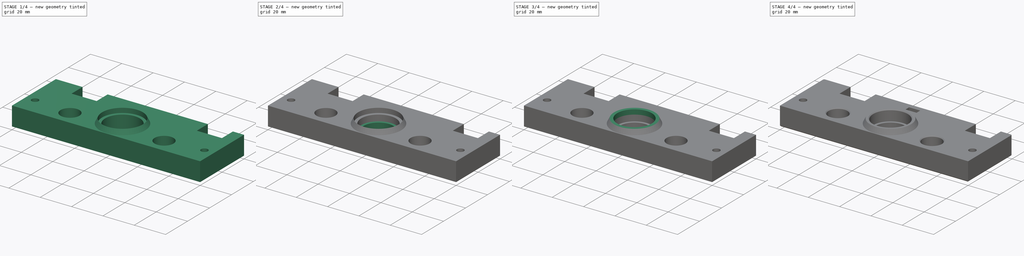
[diagram: build sequence overview — one tinted view per stage of 4, left to right]
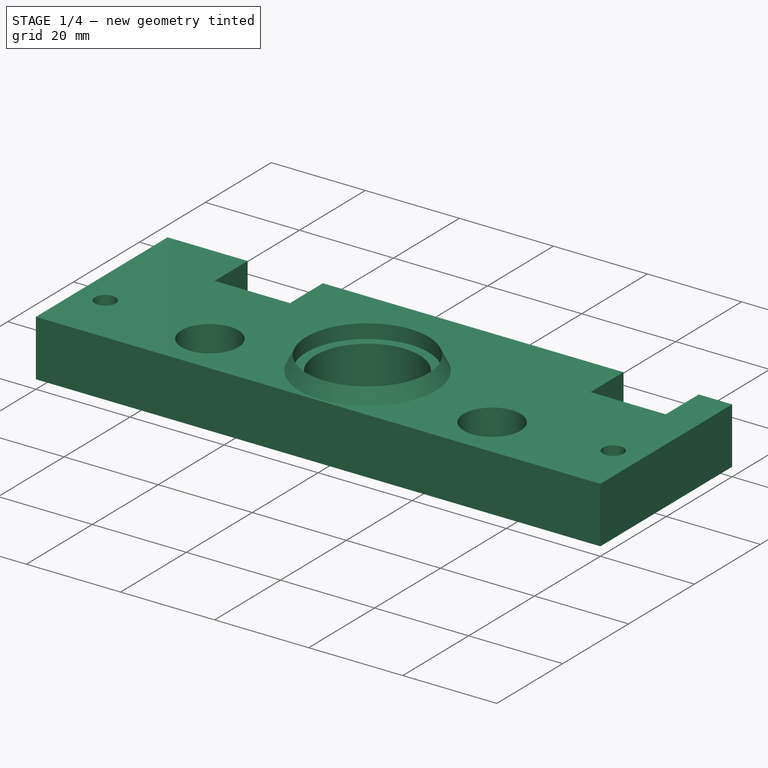
[diagram: stage 1 of 4 — iso view after this stage's code; geometry added in this stage tinted green]
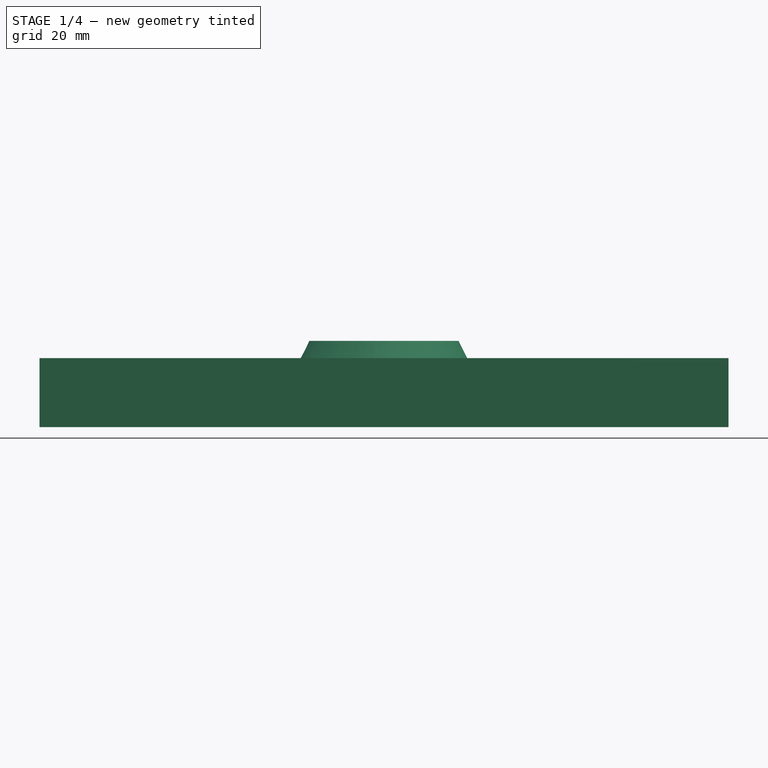
[diagram: stage 1 of 4 — front view after this stage's code; geometry added in this stage tinted green]
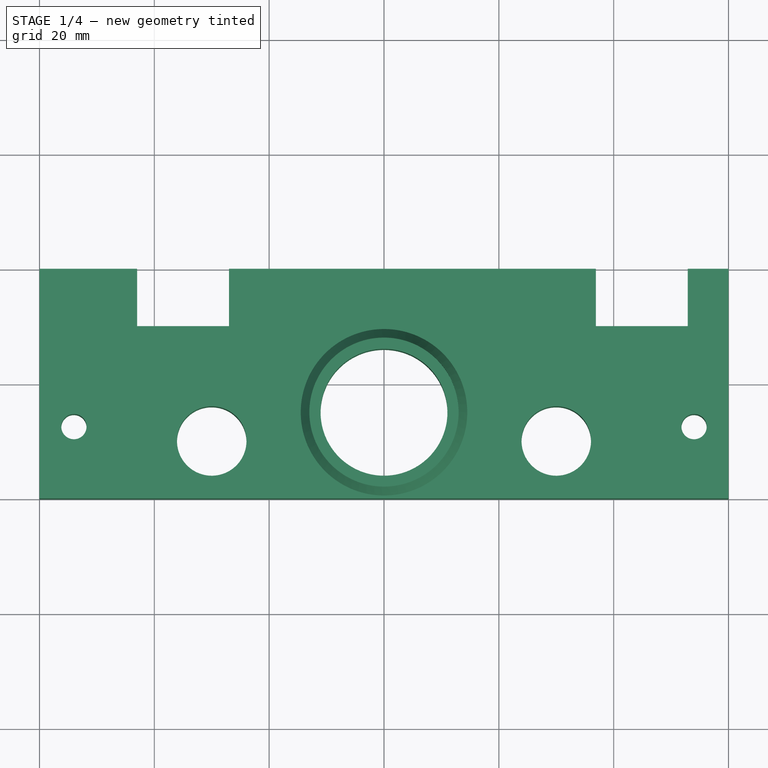
[diagram: stage 1 of 4 — top view after this stage's code; geometry added in this stage tinted green]
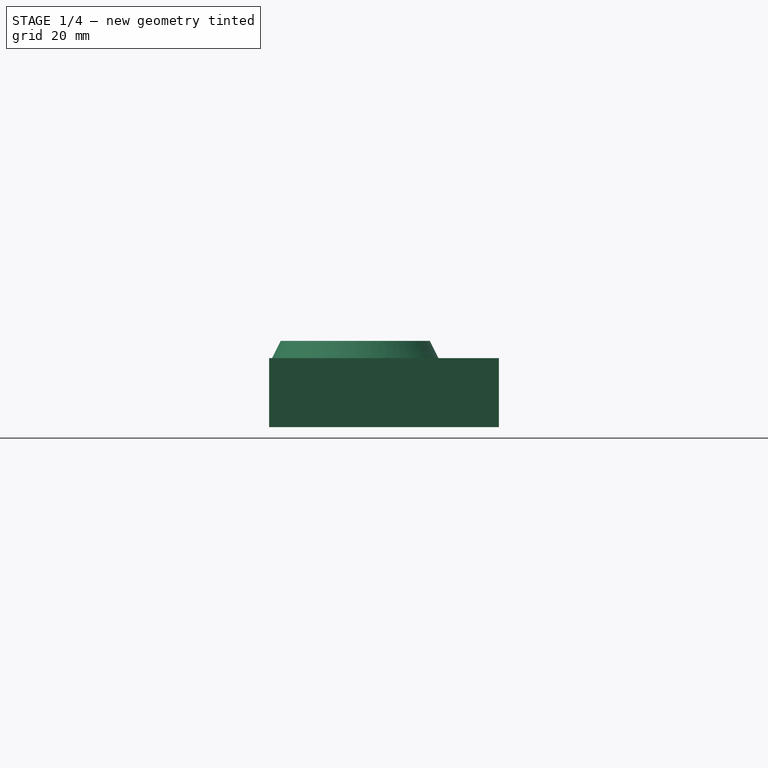
[diagram: stage 1 of 4 — right view after this stage's code; geometry added in this stage tinted green]
FCSTD DOCUMENT  (FreeCAD 0.16R6705 (Git))
Label: Tisch X-Achse - untere Wand
License: All rights reserved
LicenseURL: http://de.wikipedia.org/wiki/Alle_Rechte_vorbehalten
objects: Sketcher::SketchObject×10, PartDesign::Pad×6, PartDesign::Pocket×3, PartDesign::Chamfer×2, PartDesign::Revolution×1, Part::MultiFuse×1, Part::Cut×1
note: 34 computed .brp shape members not serialized (recipe doc carries the construction recipe); baked Part::Feature solids carry a one-line shape summary decoded from their .brp

FEATURE [Sketcher::SketchObject] Sketch
  sketch-geometry (10):
    g0: LineSegment StartX=-60 StartY=20 StartZ=0 EndX=60 EndY=20 EndZ=0
    g1: LineSegment StartX=60 StartY=20 StartZ=0 EndX=60 EndY=-20 EndZ=0
    g2: LineSegment StartX=60 StartY=-20 StartZ=0 EndX=-60 EndY=-20 EndZ=0
    g3: LineSegment StartX=-60 StartY=-20 StartZ=0 EndX=-60 EndY=20 EndZ=0
    g4: Circle CenterX=-30 CenterY=-10 CenterZ=0 NormalX=0 NormalY=0 NormalZ=1 Radius=6.05
    g5: Circle CenterX=30 CenterY=-10 CenterZ=0 NormalX=0 NormalY=0 NormalZ=1 Radius=6.05
    g6: Circle CenterX=-54 CenterY=-7.5 CenterZ=0 NormalX=0 NormalY=0 NormalZ=1 Radius=2.2
    g7: Circle CenterX=54 CenterY=-7.5 CenterZ=0 NormalX=0 NormalY=0 NormalZ=1 Radius=2.2
    g8: Circle CenterX=0 CenterY=-5 CenterZ=0 NormalX=0 NormalY=0 NormalZ=1 Radius=11.05
    g9: LineSegment [constr] StartX=-30 StartY=-16.05 StartZ=0 EndX=1.79691e-06 EndY=-16.05 EndZ=0
  constraints (28):
    c: Coincident(g0,g1)
    c: Coincident(g1,g2)
    c: Coincident(g2,g3)
    c: Coincident(g3,g0)
    c: Horizontal(g0)
    c: Horizontal(g2)
    c: Vertical(g1)
    c: Vertical(g3)
    c: Symmetric(g0,g1,g-1)
    c: DistanceY(g1,g1) = 40
    c: DistanceX(g2,g2) = 120
    c: Symmetric(g4,g5,g-2)
    c: Radius(g4) = 6.05
    c: Equal(g4,g5)
    c: Symmetric(g7,g6,g-2)
    c: Radius(g7) = 2.2
    c: Equal(g7,g6)
    c: DistanceX(g4,g-1) = 30
    c: DistanceY(g4,g0) = 30
    c: DistanceY(g6,g0) = 27.5
    c: DistanceX(g0,g6) = 6
    c: PointOnObject(g8,g-2)
    c: Radius(g8) = 11.05
    c: PointOnObject(g9,g4)
    c: PointOnObject(g9,g8)
    c: Horizontal(g9)
    c: Tangent(g9,g8)
    c: Tangent(g4,g9)
FEATURE [PartDesign::Pad] Pad  label="Grundkoerper"
  Length = 12
  Length2 = 100
  Sketch = -> Sketch
  Type = 0
FEATURE [Sketcher::SketchObject] Sketch001
  ExternalGeometry = -> [Pad]
  Placement = pos=(0,0,0) rot=(1,0,0;3.14159rad)
  Support = -> Pad [Face10]
  sketch-geometry (8):
    g0: LineSegment StartX=-43 StartY=-10 StartZ=0 EndX=-27 EndY=-10 EndZ=0
    g1: LineSegment StartX=-27 StartY=-10 StartZ=0 EndX=-27 EndY=-20 EndZ=0
    g2: LineSegment StartX=-27 StartY=-20 StartZ=0 EndX=-43 EndY=-20 EndZ=0
    g3: LineSegment StartX=-43 StartY=-20 StartZ=0 EndX=-43 EndY=-10 EndZ=0
    g4: LineSegment StartX=36.9 StartY=-10 StartZ=0 EndX=52.9 EndY=-10 EndZ=0
    g5: LineSegment StartX=52.9 StartY=-10 StartZ=0 EndX=52.9 EndY=-20 EndZ=0
    g6: LineSegment StartX=52.9 StartY=-20 StartZ=0 EndX=36.9 EndY=-20 EndZ=0
    g7: LineSegment StartX=36.9 StartY=-20 StartZ=0 EndX=36.9 EndY=-10 EndZ=0
  constraints (24):
    c: Coincident(g0,g1)
    c: Coincident(g1,g2)
    c: Coincident(g2,g3)
    c: Coincident(g3,g0)
    c: Horizontal(g0)
    c: Horizontal(g2)
    c: Vertical(g1)
    c: Vertical(g3)
    c: Coincident(g4,g5)
    c: Coincident(g5,g6)
    c: Coincident(g6,g7)
    c: Coincident(g7,g4)
    c: Horizontal(g4)
    c: Horizontal(g6)
    c: Vertical(g5)
    c: Vertical(g7)
    c: PointOnObject(g6,g-3)
    c: PointOnObject(g1,g-3)
    c: Equal(g0,g4)
    c: DistanceX(g1,g-1) = 27
    c: DistanceX(g2,g-1) = 43
    c: Equal(g3,g5)
    c: DistanceY(g5,g5) = 10
    c: DistanceX(g-1,g6) = 36.9
FEATURE [PartDesign::Pocket] Pocket  label="Aussparung Befestigungen"
  Length = 5
  Sketch = -> Sketch001
  Type = 1
FEATURE [Sketcher::SketchObject] Sketch007
  Placement = pos=(0,-5,0) rot=(-1,0,0;4.71239rad)
  sketch-geometry (3):
    g0: LineSegment StartX=13 StartY=15 StartZ=0 EndX=13 EndY=12 EndZ=0
    g1: LineSegment StartX=13 StartY=12 StartZ=0 EndX=14.5 EndY=12 EndZ=0
    g2: LineSegment StartX=14.5 StartY=12 StartZ=0 EndX=13 EndY=15 EndZ=0
  constraints (9):
    c: Vertical(g0)
    c: Coincident(g0,g1)
    c: Horizontal(g1)
    c: Coincident(g1,g2)
    c: Coincident(g2,g0)
    c: DistanceX(g1,g1) = 1.5
    c: DistanceX(g0) = 13
    c: DistanceY(g0) = 12
    c: DistanceY(g0,g0) = 3
FEATURE [PartDesign::Revolution] Revolution  label="Verstaerkung Halterung Lager"
  Angle = 360
  Axis = (0,0,1)
  Base = (0,-5,0)
  Placement = pos=(0,-5,0) rot=(-1,0,0;4.71239rad)
  ReferenceAxis = -> Sketch007 [V_Axis]
  Reversed = true
  Sketch = -> Sketch007
FEATURE [Sketcher::SketchObject] Sketch009
  Placement = pos=(0,17,0) rot=(-1,0,0;4.71239rad)
  sketch-geometry (10):
    g0: LineSegment StartX=3.525 StartY=3.96484 StartZ=0 EndX=3.525 EndY=8.03516 EndZ=0
    g1: LineSegment [constr] StartX=3.525 StartY=8.03516 StartZ=0 EndX=1e-12 EndY=10.0703 EndZ=0
    g2: LineSegment [constr] StartX=1e-12 StartY=10.0703 StartZ=0 EndX=-3.525 EndY=8.03516 EndZ=0
    g3: LineSegment StartX=-3.525 StartY=8.03516 StartZ=0 EndX=-3.525 EndY=3.96484 EndZ=0
    g4: LineSegment StartX=-3.525 StartY=3.96484 StartZ=0 EndX=-5e-12 EndY=1.92968 EndZ=0
    g5: LineSegment StartX=-5e-12 StartY=1.92968 StartZ=0 EndX=3.525 EndY=3.96484 EndZ=0
    g6: Circle [constr] CenterX=0 CenterY=6 CenterZ=0 NormalX=0 NormalY=0 NormalZ=1 Radius=4.07032
    g7: LineSegment StartX=-3.525 StartY=8.03516 StartZ=0 EndX=-3.525 EndY=12 EndZ=0
    g8: LineSegment StartX=-3.525 StartY=12 StartZ=0 EndX=3.525 EndY=12 EndZ=0
    g9: LineSegment StartX=3.525 StartY=12 StartZ=0 EndX=3.525 EndY=8.03516 EndZ=0
  constraints (25):
    c: Coincident(g0,g1)
    c: Coincident(g1,g2)
    c: Coincident(g2,g3)
    c: Coincident(g3,g4)
    c: Coincident(g4,g5)
    c: Coincident(g5,g0)
    c: Equal(g0, g1-g5) x5
    c: PointOnObject(g0,g6)
    c: PointOnObject(g1,g6)
    c: PointOnObject(g2,g6)
    c: PointOnObject(g3,g6)
    c: PointOnObject(g4,g6)
    c: PointOnObject(g5,g6)
    c: Vertical(g3)
    c: PointOnObject(g6,g-2)
    c: Distance(g3,g0) = 7.05
    c: DistanceY(g-1,g6) = 6
    c: Vertical(g7)
    c: Coincident(g7,g8)
    c: Horizontal(g8)
    c: Coincident(g8,g9)
    c: Vertical(g9)
    c: Coincident(g0,g9)
    c: Coincident(g7,g2)
    c: DistanceY(g-1,g8) = 12
FEATURE [PartDesign::Pad] Pad005  label="Fixierungsmutter"
  Length = 3.3
  Length2 = 100
  Placement = pos=(0,17,0) rot=(-1,0,0;4.71239rad)
  Sketch = -> Sketch009
  Type = 0
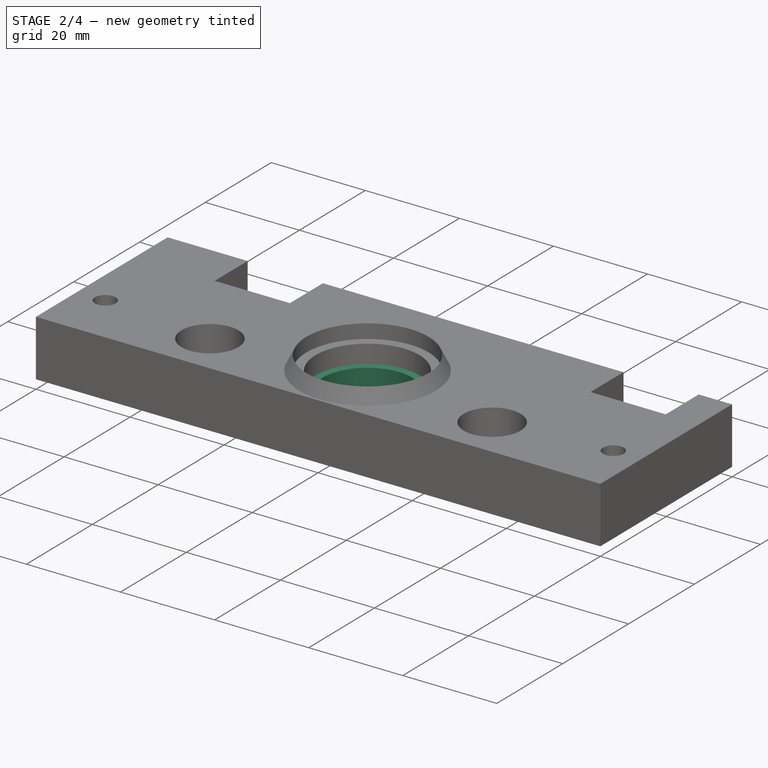
[diagram: stage 2 of 4 — iso view after this stage's code; geometry added in this stage tinted green]
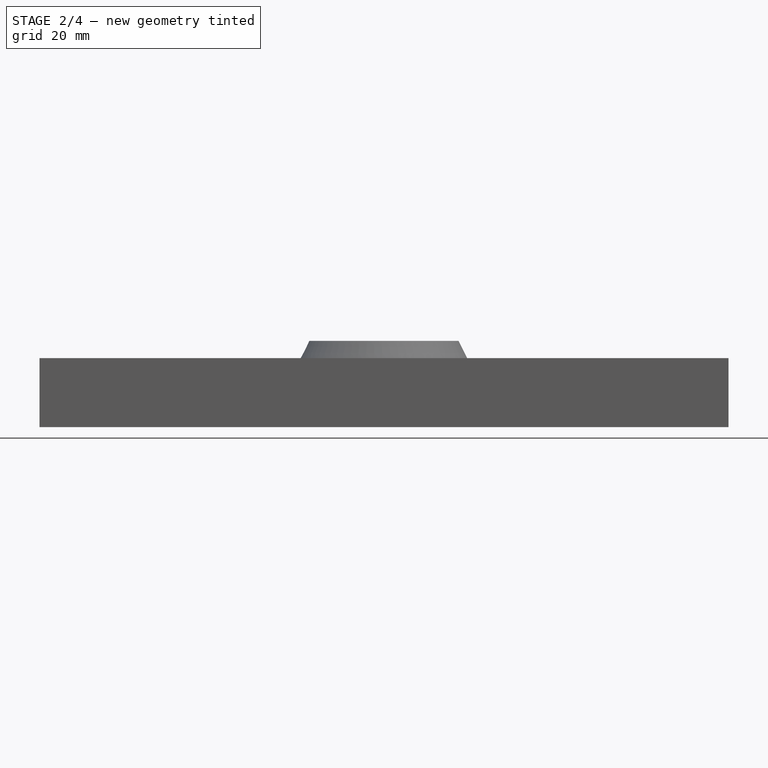
[diagram: stage 2 of 4 — front view after this stage's code; geometry added in this stage tinted green]
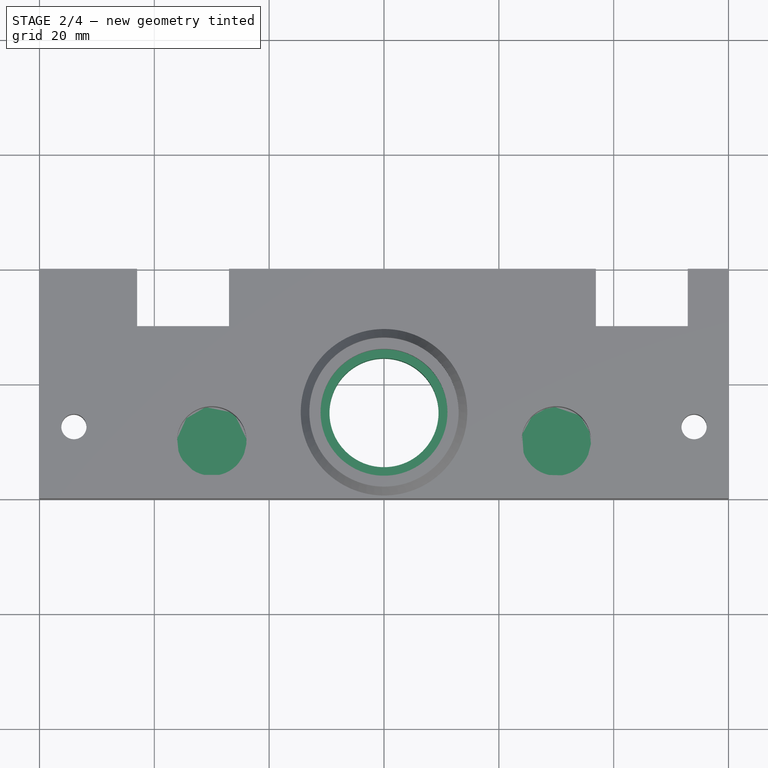
[diagram: stage 2 of 4 — top view after this stage's code; geometry added in this stage tinted green]
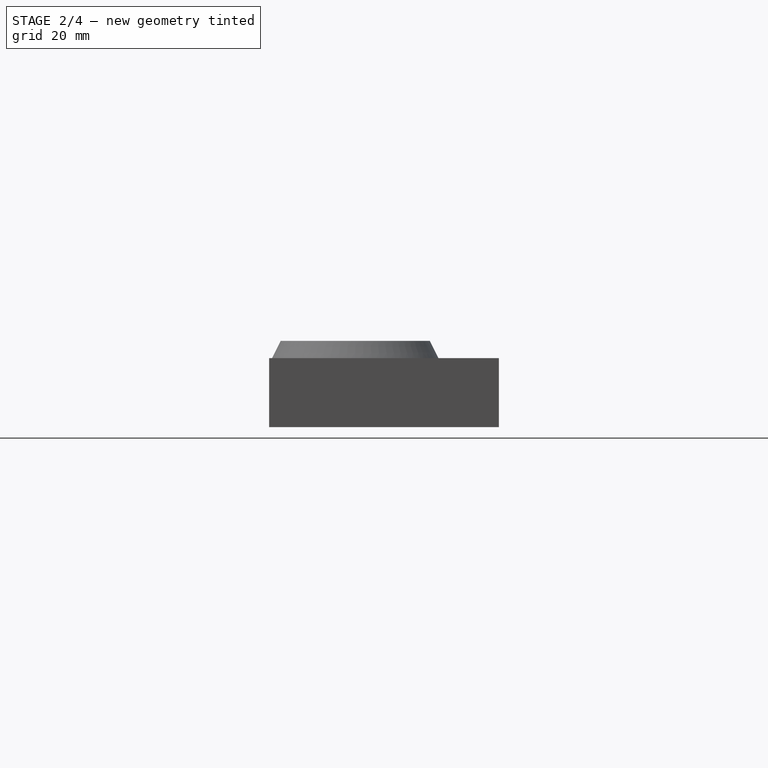
[diagram: stage 2 of 4 — right view after this stage's code; geometry added in this stage tinted green]
FEATURE [Sketcher::SketchObject] Sketch002
  ExternalGeometry = -> [Pocket]
  Placement = pos=(0,0,0) rot=(1,0,0;3.14159rad)
  Support = -> Pocket [Face2]
  sketch-geometry (2):
    g0: Circle CenterX=-54 CenterY=7.5 CenterZ=0 NormalX=0 NormalY=0 NormalZ=1 Radius=4.5
    g1: Circle CenterX=54 CenterY=7.5 CenterZ=0 NormalX=0 NormalY=0 NormalZ=1 Radius=4.5
  constraints (4):
    c: Radius(g0) = 4.5
    c: Equal(g0,g1)
    c: Symmetric(g0,g1,g-2)
    c: Coincident(g-3,g1)
FEATURE [PartDesign::Pocket] Pocket001  label="Tasche Schraubkoepfe"
  Length = 3
  Sketch = -> Sketch002
  Type = 0
FEATURE [Sketcher::SketchObject] Sketch003
  ExternalGeometry = -> [Pocket001]
  Placement = pos=(0,0,0) rot=(1,0,0;3.14159rad)
  Support = -> Pocket001 [Face2]
  sketch-geometry (4):
    g0: Circle CenterX=0 CenterY=5 CenterZ=0 NormalX=0 NormalY=0 NormalZ=1 Radius=11.05
    g1: Circle CenterX=-30 CenterY=10 CenterZ=0 NormalX=0 NormalY=0 NormalZ=1 Radius=6.05
    g2: Circle CenterX=30 CenterY=10 CenterZ=0 NormalX=0 NormalY=0 NormalZ=1 Radius=6.05
    g3: Circle CenterX=0 CenterY=5 CenterZ=0 NormalX=0 NormalY=0 NormalZ=1 Radius=9.5
  constraints (8):
    c: Coincident(g0,g-3)
    c: Symmetric(g2,g1,g-2)
    c: Equal(g1,g2)
    c: Coincident(g-4,g2)
    c: Equal(g-4,g2)
    c: Equal(g0,g-3)
    c: Coincident(g3,g0)
    c: Radius(g3) = 9.5
FEATURE [PartDesign::Pad] Pad001  label="Halterung Wellen und Lager"
  Length = 2.1
  Length2 = 100
  Reversed = true
  Sketch = -> Sketch003
  Type = 0
FEATURE [Sketcher::SketchObject] Sketch005
  ExternalGeometry = -> [Pad001]
  Placement = pos=(0,0,2.1) rot=(0,0,1;0rad)
  Support = -> Pad001 [Face29]
  sketch-geometry (2):
    g0: Circle CenterX=0 CenterY=-5 CenterZ=0 NormalX=0 NormalY=0 NormalZ=1 Radius=9.5
    g1: Circle CenterX=0 CenterY=-5 CenterZ=0 NormalX=0 NormalY=0 NormalZ=1 Radius=11.05
  constraints (4):
    c: Coincident(g0,g-4)
    c: Coincident(g1,g0)
    c: Equal(g1,g-3)
    c: Equal(g0,g-4)
FEATURE [PartDesign::Pad] Pad002  label="Offset untere Mutter"
  Length = 6
  Length2 = 100
  Sketch = -> Sketch005
  Type = 0
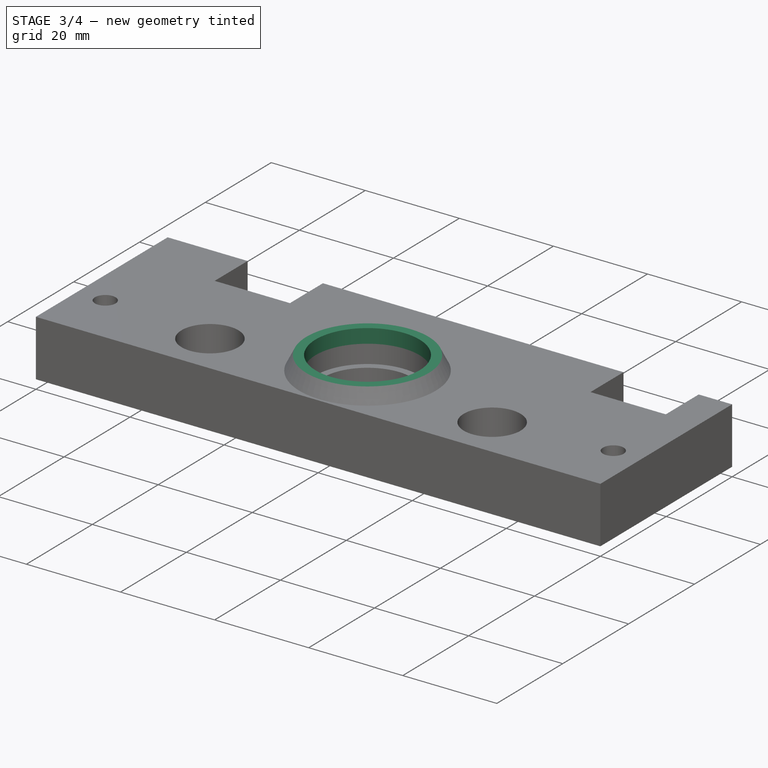
[diagram: stage 3 of 4 — iso view after this stage's code; geometry added in this stage tinted green]
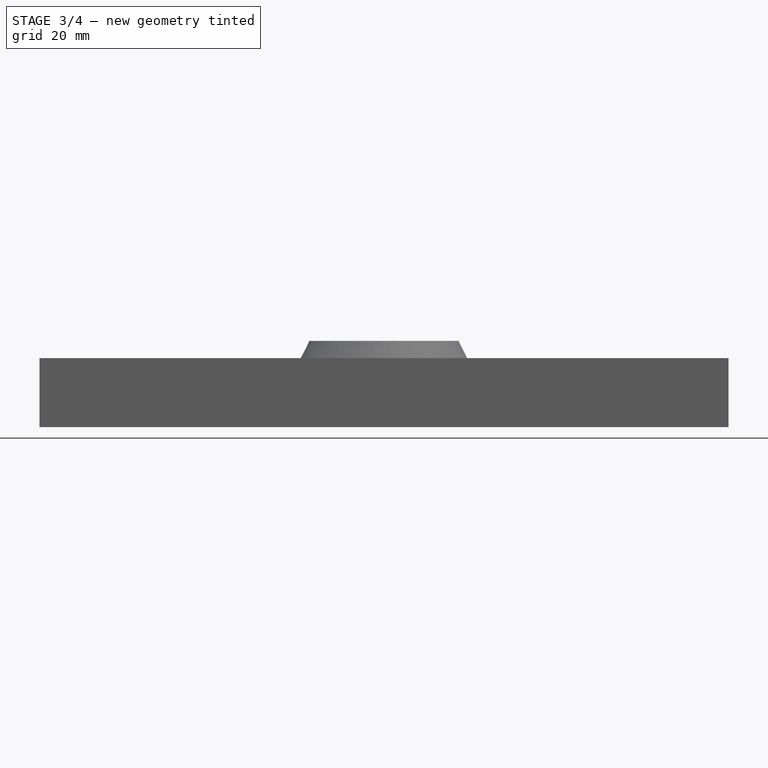
[diagram: stage 3 of 4 — front view after this stage's code; geometry added in this stage tinted green]
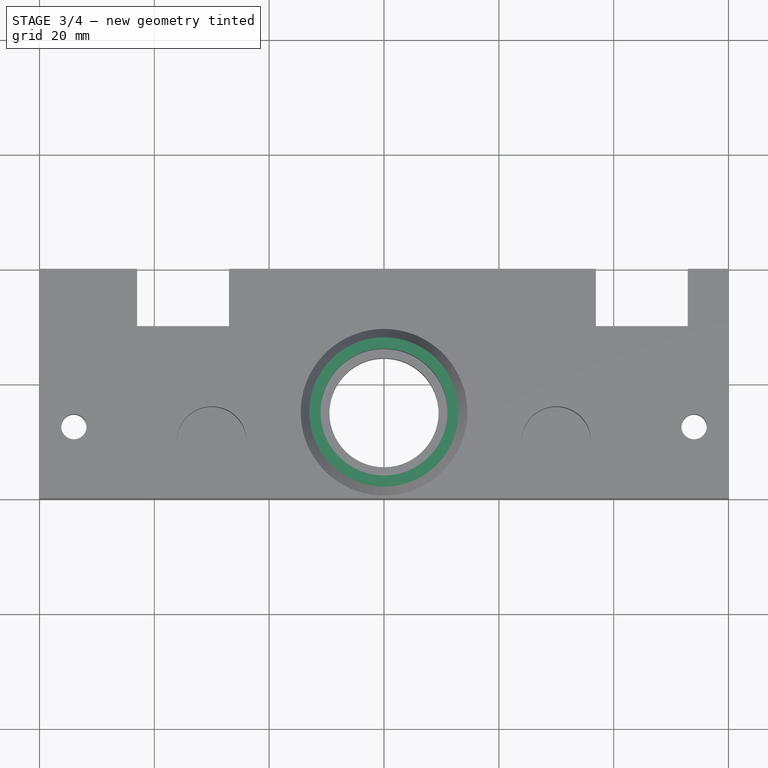
[diagram: stage 3 of 4 — top view after this stage's code; geometry added in this stage tinted green]
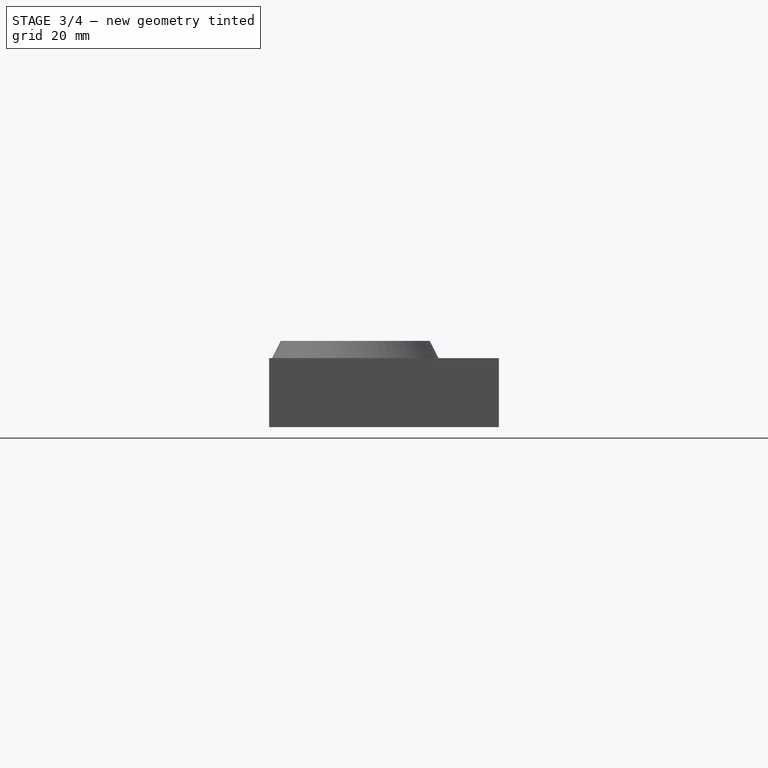
[diagram: stage 3 of 4 — right view after this stage's code; geometry added in this stage tinted green]
FEATURE [Sketcher::SketchObject] Sketch006
  ExternalGeometry = -> [Pad002]
  Placement = pos=(0,0,12) rot=(0,0,1;0rad)
  Support = -> Pad002 [Face4]
  sketch-geometry (2):
    g0: Circle CenterX=0 CenterY=-5 CenterZ=0 NormalX=0 NormalY=0 NormalZ=1 Radius=13
    g1: Circle CenterX=0 CenterY=-5 CenterZ=0 NormalX=0 NormalY=0 NormalZ=1 Radius=11.05
  constraints (4):
    c: Coincident(g0,g-3)
    c: Coincident(g1,g0)
    c: Equal(g-3,g1)
    c: Radius(g0) = 13
FEATURE [PartDesign::Pad] Pad003  label="Kragen Halterung Lager"
  Length = 3
  Length2 = 100
  Sketch = -> Sketch006
  Type = 0
FEATURE [Part::MultiFuse] Fusion
  Shapes = -> [Pad003,Revolution]
FEATURE [Sketcher::SketchObject] Sketch008
  Placement = pos=(0,20,0) rot=(0,0.707107,0.707107;3.14159rad)
  Support = -> Fusion [Face11]
  sketch-geometry (1):
    g0: Circle CenterX=0 CenterY=6 CenterZ=0 NormalX=0 NormalY=0 NormalZ=1 Radius=2.2
  constraints (3):
    c: PointOnObject(g0,g-2)
    c: DistanceY(g-1,g0) = 6
    c: Radius(g0) = 2.2
FEATURE [PartDesign::Pocket] Pocket002  label="Schraubloch"
  Length = 9
  Sketch = -> Sketch008
  Type = 0
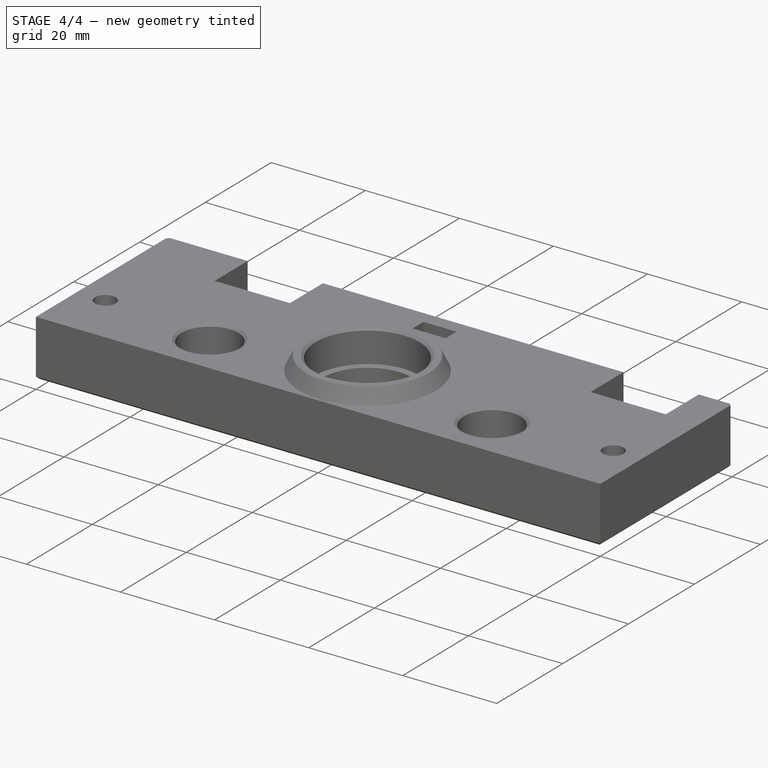
[diagram: stage 4 of 4 — iso view after this stage's code; geometry added in this stage tinted green]
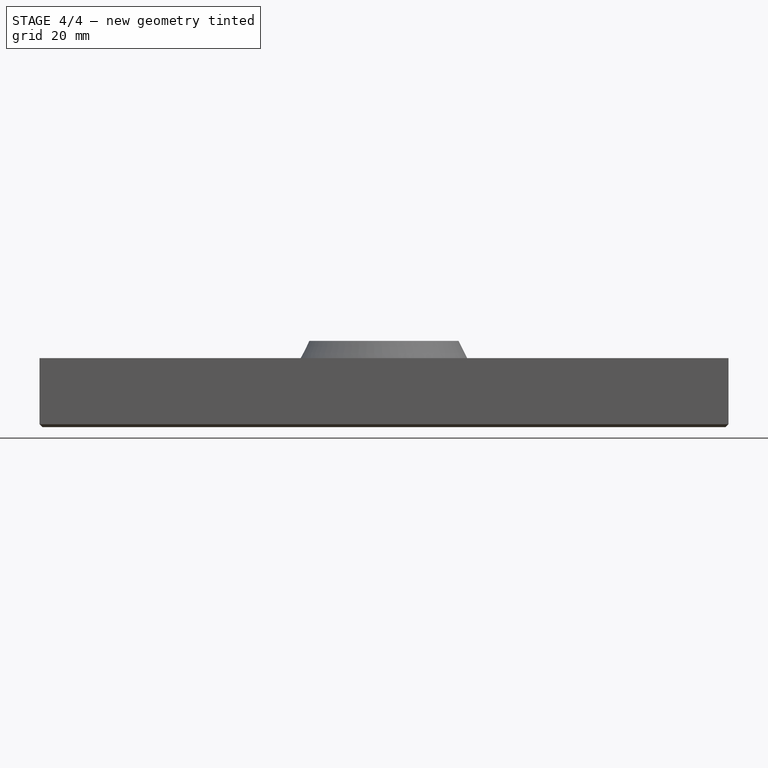
[diagram: stage 4 of 4 — front view after this stage's code; geometry added in this stage tinted green]
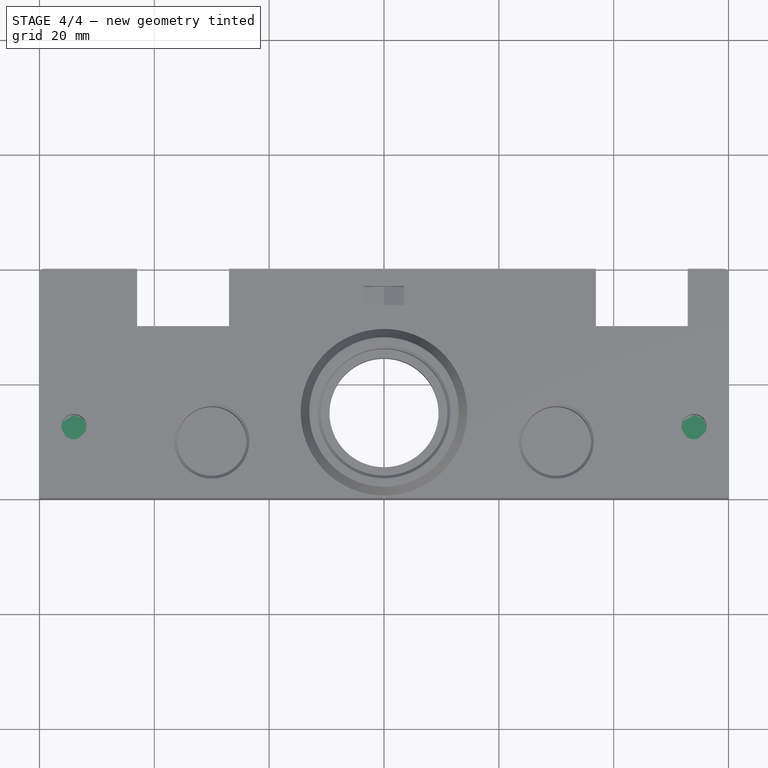
[diagram: stage 4 of 4 — top view after this stage's code; geometry added in this stage tinted green]
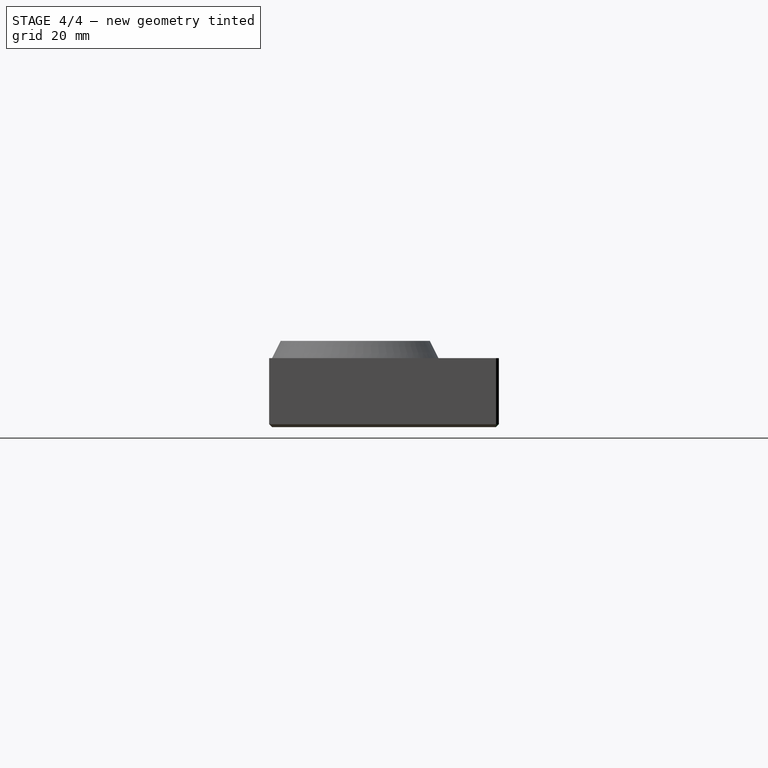
[diagram: stage 4 of 4 — right view after this stage's code; geometry added in this stage tinted green]
FEATURE [Part::Cut] Cut  label="Tisch X-Achse - untere Wand"
  Base = -> Pocket002
  Tool = -> Pad005
FEATURE [PartDesign::Chamfer] Chamfer  label="Einfuehrhilfe Wellen und Lager"
  Base = -> Cut [Edge33,Edge86,Edge35]
  Size = 0.5
FEATURE [PartDesign::Chamfer] Chamfer001  label="Abschraegung Anlagekante"
  Base = -> Chamfer [Edge32,Edge36,Edge39,Edge44,Edge48,Edge46,Edge41,Edge37,Edge33,Edge29,Edge24,Edge28,Edge26,Edge35]
  Size = 0.5
FEATURE [Sketcher::SketchObject] Sketch004
  ExternalGeometry = -> [Chamfer001]
  Placement = pos=(0,0,3) rot=(1,0,0;3.14159rad)
  Support = -> Chamfer001 [Face48]
  sketch-geometry (2):
    g0: Circle CenterX=-54 CenterY=7.5 CenterZ=0 NormalX=0 NormalY=0 NormalZ=1 Radius=2.2
    g1: Circle CenterX=54 CenterY=7.5 CenterZ=0 NormalX=0 NormalY=0 NormalZ=1 Radius=2.2
  constraints (4):
    c: Symmetric(g0,g1,g-2)
    c: Equal(g1,g0)
    c: Equal(g1,g-3)
    c: Coincident(g1,g-3)
FEATURE [PartDesign::Pad] Pad006  label="Druckbar"
  Length = 0.3
  Length2 = 100
  Reversed = true
  Sketch = -> Sketch004
  Type = 0
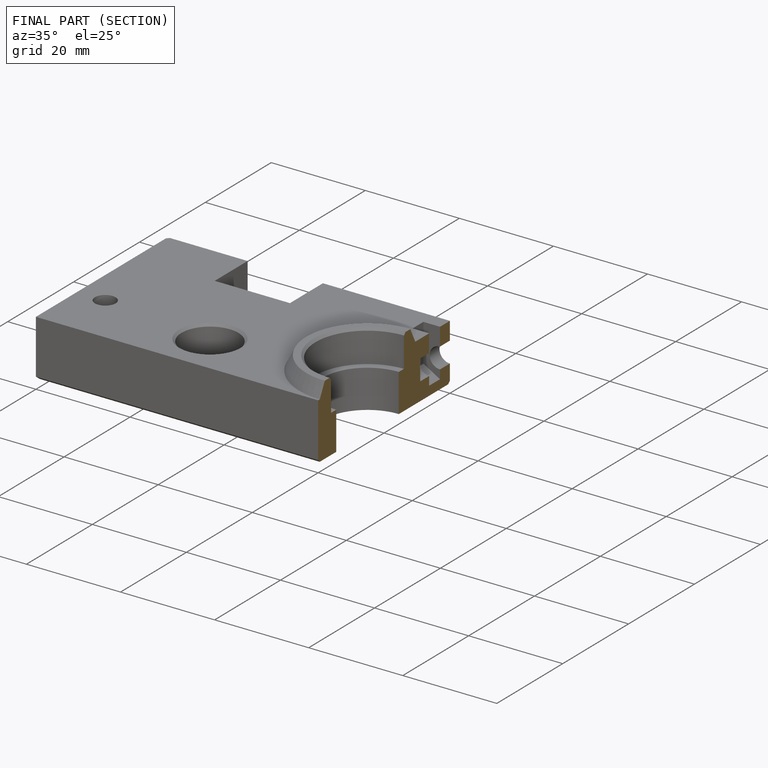
[diagram: finished part — half-section view (interior)]
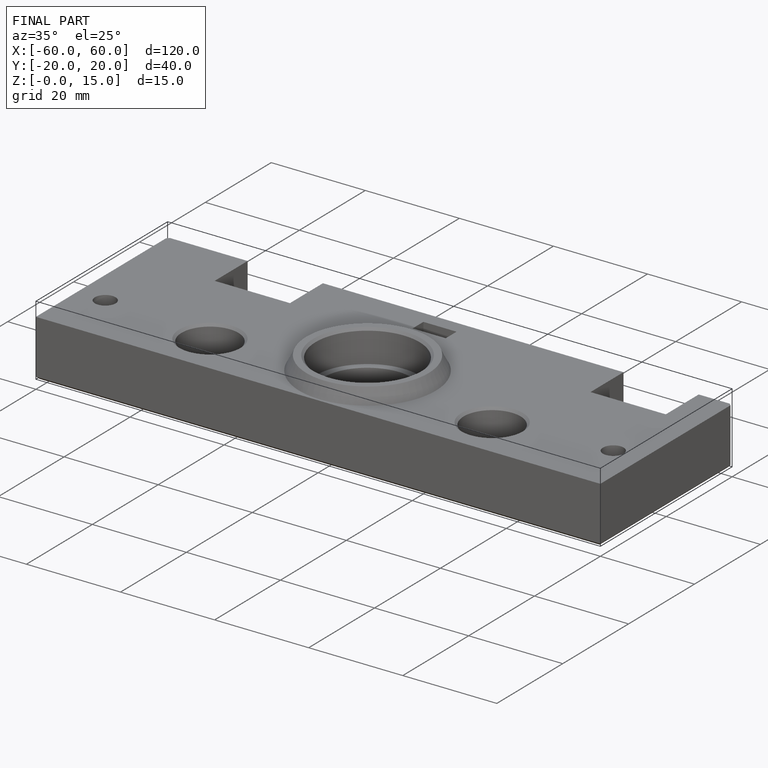
[diagram: finished part — iso view with bounding-box wireframe]
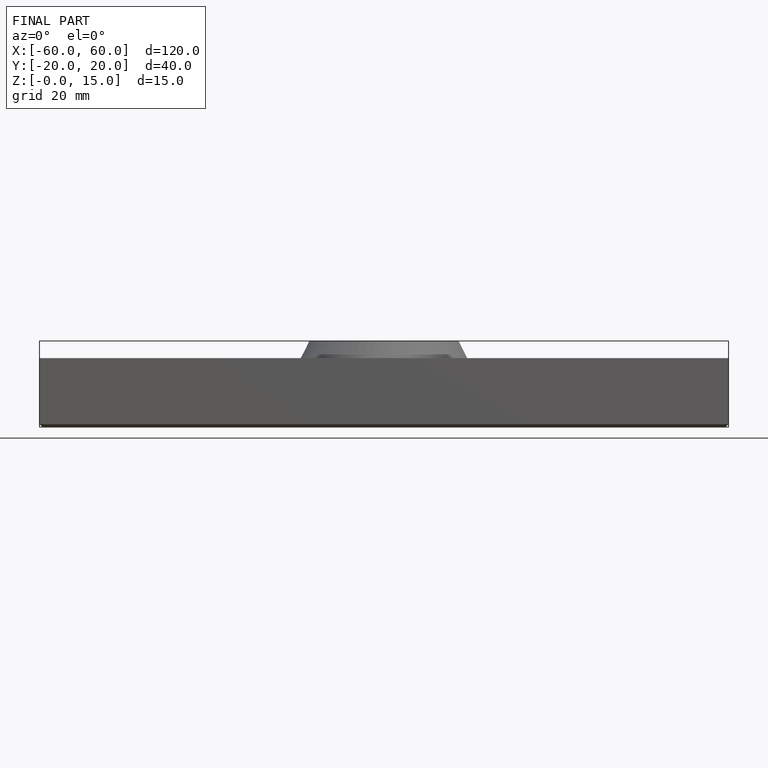
[diagram: finished part — front view with bounding-box wireframe]
